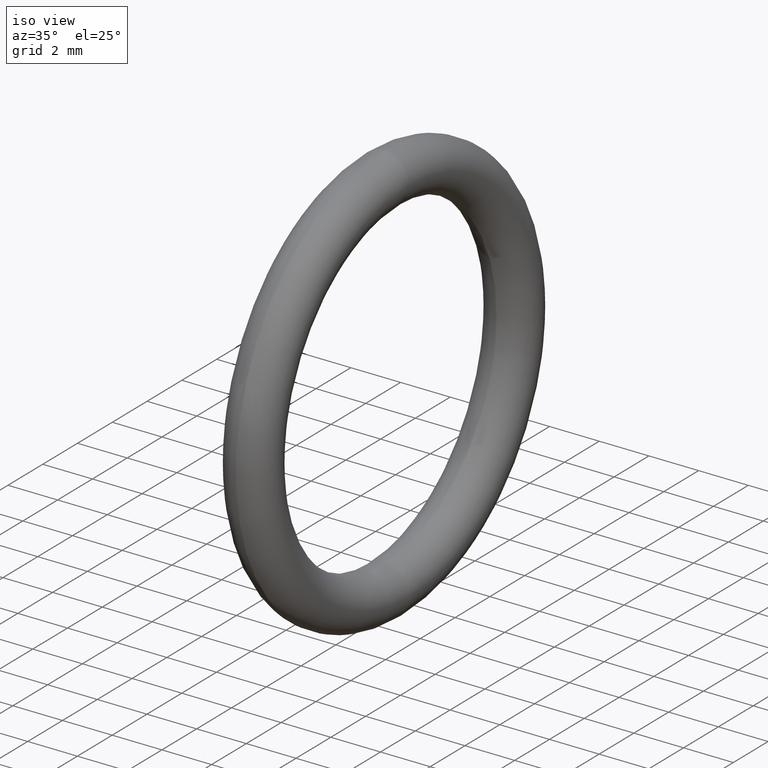
[diagram: clean part render]
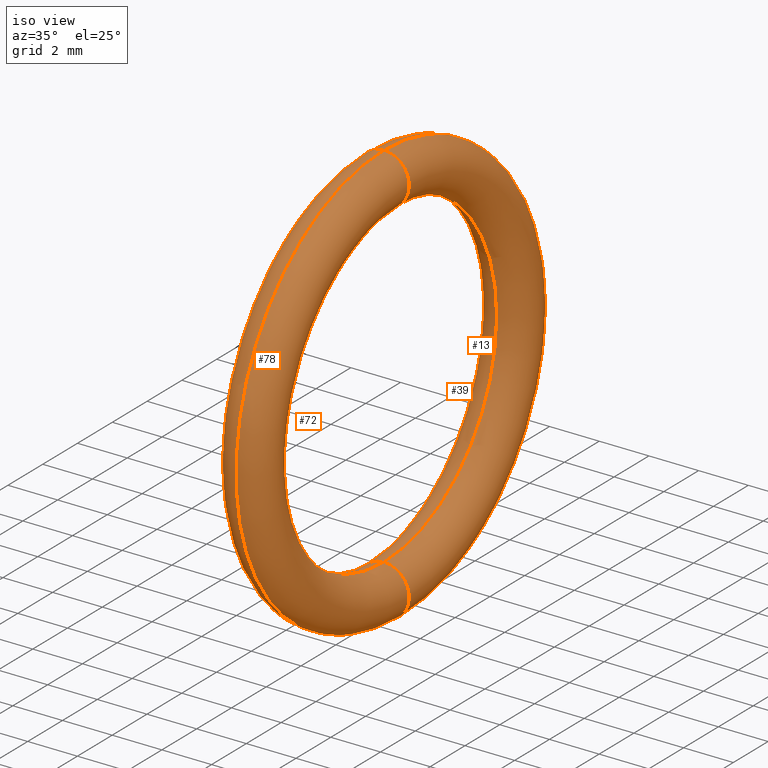
[diagram: same view with one multi-face feature highlighted, each face labeled with its STEP entity id]
A machine part, iso view. The highlighted faces form ONE feature: a constant-radius fillet chain: 4 tangent blend faces with common blend radius 1.016 mm. The faces share edges in the B-rep.
Their STEP definitions:
[1] entity #13 (Torus):
#1 = DIRECTION ( 'NONE',  ( -1.000000000000000000, 0.0000000000000000000, 0.0000000000000000000 ) ) ;
#2 = DIRECTION ( 'NONE',  ( 0.0000000000000000000, 0.0000000000000000000, 1.000000000000000000 ) ) ;
#4 = VERTEX_POINT ( 'NONE', #54 ) ;
#6 = CARTESIAN_POINT ( 'NONE',  ( 0.1000000000000000500, 0.0000000000000000000, 0.0000000000000000000 ) ) ;
#13 = ADVANCED_FACE ( 'NONE', ( #53 ), #52, .T. ) ;
#18 = VERTEX_POINT ( 'NONE', #86 ) ;
#21 = VERTEX_POINT ( 'NONE', #88 ) ;
#25 = CARTESIAN_POINT ( 'NONE',  ( 0.1000000000000000500, 0.0000000000000000000, 0.0000000000000000000 ) ) ;
#26 = AXIS2_PLACEMENT_3D ( 'NONE', #25, #1, #2 ) ;
#27 = CIRCLE ( 'NONE', #26, 0.2550000000000000000 ) ;
#28 = DIRECTION ( 'NONE',  ( 0.0000000000000000000, 0.0000000000000000000, -1.000000000000000000 ) ) ;
#29 = DIRECTION ( 'NONE',  ( 0.0000000000000000000, -1.000000000000000000, 0.0000000000000000000 ) ) ;
#30 = CARTESIAN_POINT ( 'NONE',  ( 0.1000000000000000500, 0.0000000000000000000, 0.2949999999999999800 ) ) ;
#31 = AXIS2_PLACEMENT_3D ( 'NONE', #30, #29, #28 ) ;
#32 = CIRCLE ( 'NONE', #31, 0.03999999999999998000 ) ;
#44 = DIRECTION ( 'NONE',  ( -1.000000000000000000, 0.0000000000000000000, 0.0000000000000000000 ) ) ;
#45 = AXIS2_PLACEMENT_3D ( 'NONE', #6, #44, #77 ) ;
#46 = CIRCLE ( 'NONE', #45, 0.3349999999999999600 ) ;
#47 = CARTESIAN_POINT ( 'NONE',  ( 0.1000000000000000500, 3.612708057484692000E-017, -0.2949999999999999800 ) ) ;
#52 = TOROIDAL_SURFACE ( 'NONE', #85, 0.2949999999999999800, 0.04000000000000000100 ) ;
#53 = FACE_OUTER_BOUND ( 'NONE', #66, .T. ) ;
#54 = CARTESIAN_POINT ( 'NONE',  ( 0.1000000000000000500, 4.102566777143632800E-017, -0.3349999999999999600 ) ) ;
#59 = ORIENTED_EDGE ( 'NONE', *, *, #67, .T. ) ;
#60 = ORIENTED_EDGE ( 'NONE', *, *, #71, .T. ) ;
#62 = ORIENTED_EDGE ( 'NONE', *, *, #64, .F. ) ;
#64 = EDGE_CURVE ( 'NONE', #18, #4, #46, .T. ) ;
#66 = EDGE_LOOP ( 'NONE', ( #62, #69, #60, #59 ) ) ;
#67 = EDGE_CURVE ( 'NONE', #81, #4, #76, .T. ) ;
#68 = EDGE_CURVE ( 'NONE', #21, #18, #32, .T. ) ;
#69 = ORIENTED_EDGE ( 'NONE', *, *, #68, .F. ) ;
#71 = EDGE_CURVE ( 'NONE', #21, #81, #27, .T. ) ;
#73 = DIRECTION ( 'NONE',  ( 0.0000000000000000000, -1.224646799147353900E-016, 1.000000000000000000 ) ) ;
#74 = DIRECTION ( 'NONE',  ( 0.0000000000000000000, 1.000000000000000000, 1.224646799147353200E-016 ) ) ;
#75 = AXIS2_PLACEMENT_3D ( 'NONE', #47, #74, #73 ) ;
#76 = CIRCLE ( 'NONE', #75, 0.03999999999999998000 ) ;
#77 = DIRECTION ( 'NONE',  ( 0.0000000000000000000, 0.0000000000000000000, 1.000000000000000000 ) ) ;
#81 = VERTEX_POINT ( 'NONE', #119 ) ;
#82 = DIRECTION ( 'NONE',  ( 0.0000000000000000000, 0.0000000000000000000, 1.000000000000000000 ) ) ;
#83 = DIRECTION ( 'NONE',  ( -1.000000000000000000, 0.0000000000000000000, 0.0000000000000000000 ) ) ;
#84 = CARTESIAN_POINT ( 'NONE',  ( 0.1000000000000000500, 0.0000000000000000000, 0.0000000000000000000 ) ) ;
#85 = AXIS2_PLACEMENT_3D ( 'NONE', #84, #83, #82 ) ;
#86 = CARTESIAN_POINT ( 'NONE',  ( 0.1000000000000000500, 0.0000000000000000000, 0.3349999999999999600 ) ) ;
#88 = CARTESIAN_POINT ( 'NONE',  ( 0.1000000000000000500, 0.0000000000000000000, 0.2550000000000000000 ) ) ;
#119 = CARTESIAN_POINT ( 'NONE',  ( 0.1000000000000000500, 3.122849337825750500E-017, -0.2550000000000000000 ) ) ;
[2] entity #72 (Torus):
#4 = VERTEX_POINT ( 'NONE', #54 ) ;
#7 = DIRECTION ( 'NONE',  ( 0.0000000000000000000, 0.0000000000000000000, 1.000000000000000000 ) ) ;
#8 = DIRECTION ( 'NONE',  ( -1.000000000000000000, 0.0000000000000000000, 0.0000000000000000000 ) ) ;
#9 = CARTESIAN_POINT ( 'NONE',  ( 0.1000000000000000500, 0.0000000000000000000, 0.0000000000000000000 ) ) ;
#10 = AXIS2_PLACEMENT_3D ( 'NONE', #9, #8, #7 ) ;
#11 = CARTESIAN_POINT ( 'NONE',  ( 0.1000000000000000500, 0.0000000000000000000, 0.0000000000000000000 ) ) ;
#14 = ORIENTED_EDGE ( 'NONE', *, *, #41, .F. ) ;
#18 = VERTEX_POINT ( 'NONE', #86 ) ;
#21 = VERTEX_POINT ( 'NONE', #88 ) ;
#28 = DIRECTION ( 'NONE',  ( 0.0000000000000000000, 0.0000000000000000000, -1.000000000000000000 ) ) ;
#29 = DIRECTION ( 'NONE',  ( 0.0000000000000000000, -1.000000000000000000, 0.0000000000000000000 ) ) ;
#30 = CARTESIAN_POINT ( 'NONE',  ( 0.1000000000000000500, 0.0000000000000000000, 0.2949999999999999800 ) ) ;
#31 = AXIS2_PLACEMENT_3D ( 'NONE', #30, #29, #28 ) ;
#32 = CIRCLE ( 'NONE', #31, 0.03999999999999998000 ) ;
#33 = CIRCLE ( 'NONE', #10, 0.2550000000000000000 ) ;
#40 = EDGE_CURVE ( 'NONE', #81, #21, #33, .T. ) ;
#41 = EDGE_CURVE ( 'NONE', #4, #18, #51, .T. ) ;
#47 = CARTESIAN_POINT ( 'NONE',  ( 0.1000000000000000500, 3.612708057484692000E-017, -0.2949999999999999800 ) ) ;
#48 = DIRECTION ( 'NONE',  ( 0.0000000000000000000, 0.0000000000000000000, 1.000000000000000000 ) ) ;
#49 = DIRECTION ( 'NONE',  ( -1.000000000000000000, 0.0000000000000000000, 0.0000000000000000000 ) ) ;
#50 = AXIS2_PLACEMENT_3D ( 'NONE', #11, #49, #48 ) ;
#51 = CIRCLE ( 'NONE', #50, 0.3349999999999999600 ) ;
#54 = CARTESIAN_POINT ( 'NONE',  ( 0.1000000000000000500, 4.102566777143632800E-017, -0.3349999999999999600 ) ) ;
#61 = ORIENTED_EDGE ( 'NONE', *, *, #67, .F. ) ;
#63 = ORIENTED_EDGE ( 'NONE', *, *, #68, .T. ) ;
#65 = EDGE_LOOP ( 'NONE', ( #14, #61, #70, #63 ) ) ;
#67 = EDGE_CURVE ( 'NONE', #81, #4, #76, .T. ) ;
#68 = EDGE_CURVE ( 'NONE', #21, #18, #32, .T. ) ;
#70 = ORIENTED_EDGE ( 'NONE', *, *, #40, .T. ) ;
#72 = ADVANCED_FACE ( 'NONE', ( #123 ), #101, .T. ) ;
#73 = DIRECTION ( 'NONE',  ( 0.0000000000000000000, -1.224646799147353900E-016, 1.000000000000000000 ) ) ;
#74 = DIRECTION ( 'NONE',  ( 0.0000000000000000000, 1.000000000000000000, 1.224646799147353200E-016 ) ) ;
#75 = AXIS2_PLACEMENT_3D ( 'NONE', #47, #74, #73 ) ;
#76 = CIRCLE ( 'NONE', #75, 0.03999999999999998000 ) ;
#81 = VERTEX_POINT ( 'NONE', #119 ) ;
#86 = CARTESIAN_POINT ( 'NONE',  ( 0.1000000000000000500, 0.0000000000000000000, 0.3349999999999999600 ) ) ;
#88 = CARTESIAN_POINT ( 'NONE',  ( 0.1000000000000000500, 0.0000000000000000000, 0.2550000000000000000 ) ) ;
#98 = CARTESIAN_POINT ( 'NONE',  ( 0.1000000000000000500, 0.0000000000000000000, 0.0000000000000000000 ) ) ;
#101 = TOROIDAL_SURFACE ( 'NONE', #118, 0.2949999999999999800, 0.04000000000000000100 ) ;
#102 = DIRECTION ( 'NONE',  ( 0.0000000000000000000, 0.0000000000000000000, 1.000000000000000000 ) ) ;
#118 = AXIS2_PLACEMENT_3D ( 'NONE', #98, #121, #102 ) ;
#119 = CARTESIAN_POINT ( 'NONE',  ( 0.1000000000000000500, 3.122849337825750500E-017, -0.2550000000000000000 ) ) ;
#121 = DIRECTION ( 'NONE',  ( -1.000000000000000000, 0.0000000000000000000, 0.0000000000000000000 ) ) ;
#123 = FACE_OUTER_BOUND ( 'NONE', #65, .T. ) ;
[3] entity #78 (Torus):
#3 = EDGE_CURVE ( 'NONE', #4, #81, #5, .T. ) ;
#4 = VERTEX_POINT ( 'NONE', #54 ) ;
#5 = CIRCLE ( 'NONE', #58, 0.03999999999999998000 ) ;
#7 = DIRECTION ( 'NONE',  ( 0.0000000000000000000, 0.0000000000000000000, 1.000000000000000000 ) ) ;
#8 = DIRECTION ( 'NONE',  ( -1.000000000000000000, 0.0000000000000000000, 0.0000000000000000000 ) ) ;
#9 = CARTESIAN_POINT ( 'NONE',  ( 0.1000000000000000500, 0.0000000000000000000, 0.0000000000000000000 ) ) ;
#10 = AXIS2_PLACEMENT_3D ( 'NONE', #9, #8, #7 ) ;
#11 = CARTESIAN_POINT ( 'NONE',  ( 0.1000000000000000500, 0.0000000000000000000, 0.0000000000000000000 ) ) ;
#12 = EDGE_LOOP ( 'NONE', ( #79, #43, #42, #20 ) ) ;
#18 = VERTEX_POINT ( 'NONE', #86 ) ;
#19 = EDGE_CURVE ( 'NONE', #18, #21, #93, .T. ) ;
#20 = ORIENTED_EDGE ( 'NONE', *, *, #40, .F. ) ;
#21 = VERTEX_POINT ( 'NONE', #88 ) ;
#33 = CIRCLE ( 'NONE', #10, 0.2550000000000000000 ) ;
#40 = EDGE_CURVE ( 'NONE', #81, #21, #33, .T. ) ;
#41 = EDGE_CURVE ( 'NONE', #4, #18, #51, .T. ) ;
#42 = ORIENTED_EDGE ( 'NONE', *, *, #19, .T. ) ;
#43 = ORIENTED_EDGE ( 'NONE', *, *, #41, .T. ) ;
#48 = DIRECTION ( 'NONE',  ( 0.0000000000000000000, 0.0000000000000000000, 1.000000000000000000 ) ) ;
#49 = DIRECTION ( 'NONE',  ( -1.000000000000000000, 0.0000000000000000000, 0.0000000000000000000 ) ) ;
#50 = AXIS2_PLACEMENT_3D ( 'NONE', #11, #49, #48 ) ;
#51 = CIRCLE ( 'NONE', #50, 0.3349999999999999600 ) ;
#54 = CARTESIAN_POINT ( 'NONE',  ( 0.1000000000000000500, 4.102566777143632800E-017, -0.3349999999999999600 ) ) ;
#55 = DIRECTION ( 'NONE',  ( 0.0000000000000000000, -1.224646799147353900E-016, 1.000000000000000000 ) ) ;
#56 = DIRECTION ( 'NONE',  ( 0.0000000000000000000, 1.000000000000000000, 1.224646799147353200E-016 ) ) ;
#57 = CARTESIAN_POINT ( 'NONE',  ( 0.1000000000000000500, 3.612708057484692000E-017, -0.2949999999999999800 ) ) ;
#58 = AXIS2_PLACEMENT_3D ( 'NONE', #57, #56, #55 ) ;
#78 = ADVANCED_FACE ( 'NONE', ( #122 ), #124, .T. ) ;
#79 = ORIENTED_EDGE ( 'NONE', *, *, #3, .F. ) ;
#81 = VERTEX_POINT ( 'NONE', #119 ) ;
#86 = CARTESIAN_POINT ( 'NONE',  ( 0.1000000000000000500, 0.0000000000000000000, 0.3349999999999999600 ) ) ;
#88 = CARTESIAN_POINT ( 'NONE',  ( 0.1000000000000000500, 0.0000000000000000000, 0.2550000000000000000 ) ) ;
#89 = DIRECTION ( 'NONE',  ( 0.0000000000000000000, 0.0000000000000000000, -1.000000000000000000 ) ) ;
#90 = DIRECTION ( 'NONE',  ( 0.0000000000000000000, -1.000000000000000000, 0.0000000000000000000 ) ) ;
#91 = CARTESIAN_POINT ( 'NONE',  ( 0.1000000000000000500, 0.0000000000000000000, 0.2949999999999999800 ) ) ;
#92 = AXIS2_PLACEMENT_3D ( 'NONE', #91, #90, #89 ) ;
#93 = CIRCLE ( 'NONE', #92, 0.03999999999999998000 ) ;
#99 = DIRECTION ( 'NONE',  ( 0.0000000000000000000, 0.0000000000000000000, 1.000000000000000000 ) ) ;
#100 = DIRECTION ( 'NONE',  ( -1.000000000000000000, 0.0000000000000000000, 0.0000000000000000000 ) ) ;
#114 = CARTESIAN_POINT ( 'NONE',  ( 0.1000000000000000500, 0.0000000000000000000, 0.0000000000000000000 ) ) ;
#119 = CARTESIAN_POINT ( 'NONE',  ( 0.1000000000000000500, 3.122849337825750500E-017, -0.2550000000000000000 ) ) ;
#120 = AXIS2_PLACEMENT_3D ( 'NONE', #114, #100, #99 ) ;
#122 = FACE_OUTER_BOUND ( 'NONE', #12, .T. ) ;
#124 = TOROIDAL_SURFACE ( 'NONE', #120, 0.2949999999999999800, 0.04000000000000000100 ) ;
[4] entity #39 (Torus):
#1 = DIRECTION ( 'NONE',  ( -1.000000000000000000, 0.0000000000000000000, 0.0000000000000000000 ) ) ;
#2 = DIRECTION ( 'NONE',  ( 0.0000000000000000000, 0.0000000000000000000, 1.000000000000000000 ) ) ;
#3 = EDGE_CURVE ( 'NONE', #4, #81, #5, .T. ) ;
#4 = VERTEX_POINT ( 'NONE', #54 ) ;
#5 = CIRCLE ( 'NONE', #58, 0.03999999999999998000 ) ;
#6 = CARTESIAN_POINT ( 'NONE',  ( 0.1000000000000000500, 0.0000000000000000000, 0.0000000000000000000 ) ) ;
#15 = ORIENTED_EDGE ( 'NONE', *, *, #71, .F. ) ;
#17 = ORIENTED_EDGE ( 'NONE', *, *, #64, .T. ) ;
#18 = VERTEX_POINT ( 'NONE', #86 ) ;
#19 = EDGE_CURVE ( 'NONE', #18, #21, #93, .T. ) ;
#21 = VERTEX_POINT ( 'NONE', #88 ) ;
#22 = ORIENTED_EDGE ( 'NONE', *, *, #19, .F. ) ;
#23 = EDGE_LOOP ( 'NONE', ( #22, #17, #24, #15 ) ) ;
#24 = ORIENTED_EDGE ( 'NONE', *, *, #3, .T. ) ;
#25 = CARTESIAN_POINT ( 'NONE',  ( 0.1000000000000000500, 0.0000000000000000000, 0.0000000000000000000 ) ) ;
#26 = AXIS2_PLACEMENT_3D ( 'NONE', #25, #1, #2 ) ;
#27 = CIRCLE ( 'NONE', #26, 0.2550000000000000000 ) ;
#34 = DIRECTION ( 'NONE',  ( 0.0000000000000000000, 0.0000000000000000000, 1.000000000000000000 ) ) ;
#35 = DIRECTION ( 'NONE',  ( -1.000000000000000000, 0.0000000000000000000, 0.0000000000000000000 ) ) ;
#36 = CARTESIAN_POINT ( 'NONE',  ( 0.1000000000000000500, 0.0000000000000000000, 0.0000000000000000000 ) ) ;
#37 = AXIS2_PLACEMENT_3D ( 'NONE', #36, #35, #34 ) ;
#38 = TOROIDAL_SURFACE ( 'NONE', #37, 0.2949999999999999800, 0.04000000000000000100 ) ;
#39 = ADVANCED_FACE ( 'NONE', ( #87 ), #38, .T. ) ;
#44 = DIRECTION ( 'NONE',  ( -1.000000000000000000, 0.0000000000000000000, 0.0000000000000000000 ) ) ;
#45 = AXIS2_PLACEMENT_3D ( 'NONE', #6, #44, #77 ) ;
#46 = CIRCLE ( 'NONE', #45, 0.3349999999999999600 ) ;
#54 = CARTESIAN_POINT ( 'NONE',  ( 0.1000000000000000500, 4.102566777143632800E-017, -0.3349999999999999600 ) ) ;
#55 = DIRECTION ( 'NONE',  ( 0.0000000000000000000, -1.224646799147353900E-016, 1.000000000000000000 ) ) ;
#56 = DIRECTION ( 'NONE',  ( 0.0000000000000000000, 1.000000000000000000, 1.224646799147353200E-016 ) ) ;
#57 = CARTESIAN_POINT ( 'NONE',  ( 0.1000000000000000500, 3.612708057484692000E-017, -0.2949999999999999800 ) ) ;
#58 = AXIS2_PLACEMENT_3D ( 'NONE', #57, #56, #55 ) ;
#64 = EDGE_CURVE ( 'NONE', #18, #4, #46, .T. ) ;
#71 = EDGE_CURVE ( 'NONE', #21, #81, #27, .T. ) ;
#77 = DIRECTION ( 'NONE',  ( 0.0000000000000000000, 0.0000000000000000000, 1.000000000000000000 ) ) ;
#81 = VERTEX_POINT ( 'NONE', #119 ) ;
#86 = CARTESIAN_POINT ( 'NONE',  ( 0.1000000000000000500, 0.0000000000000000000, 0.3349999999999999600 ) ) ;
#87 = FACE_OUTER_BOUND ( 'NONE', #23, .T. ) ;
#88 = CARTESIAN_POINT ( 'NONE',  ( 0.1000000000000000500, 0.0000000000000000000, 0.2550000000000000000 ) ) ;
#89 = DIRECTION ( 'NONE',  ( 0.0000000000000000000, 0.0000000000000000000, -1.000000000000000000 ) ) ;
#90 = DIRECTION ( 'NONE',  ( 0.0000000000000000000, -1.000000000000000000, 0.0000000000000000000 ) ) ;
#91 = CARTESIAN_POINT ( 'NONE',  ( 0.1000000000000000500, 0.0000000000000000000, 0.2949999999999999800 ) ) ;
#92 = AXIS2_PLACEMENT_3D ( 'NONE', #91, #90, #89 ) ;
#93 = CIRCLE ( 'NONE', #92, 0.03999999999999998000 ) ;
#119 = CARTESIAN_POINT ( 'NONE',  ( 0.1000000000000000500, 3.122849337825750500E-017, -0.2550000000000000000 ) ) ;